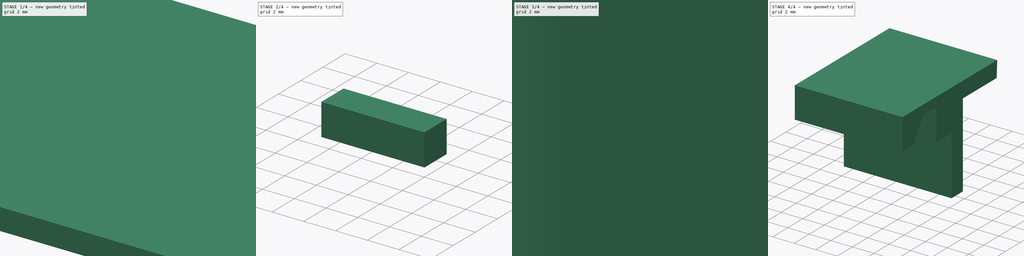
[diagram: build sequence overview — one tinted view per stage of 4, left to right]
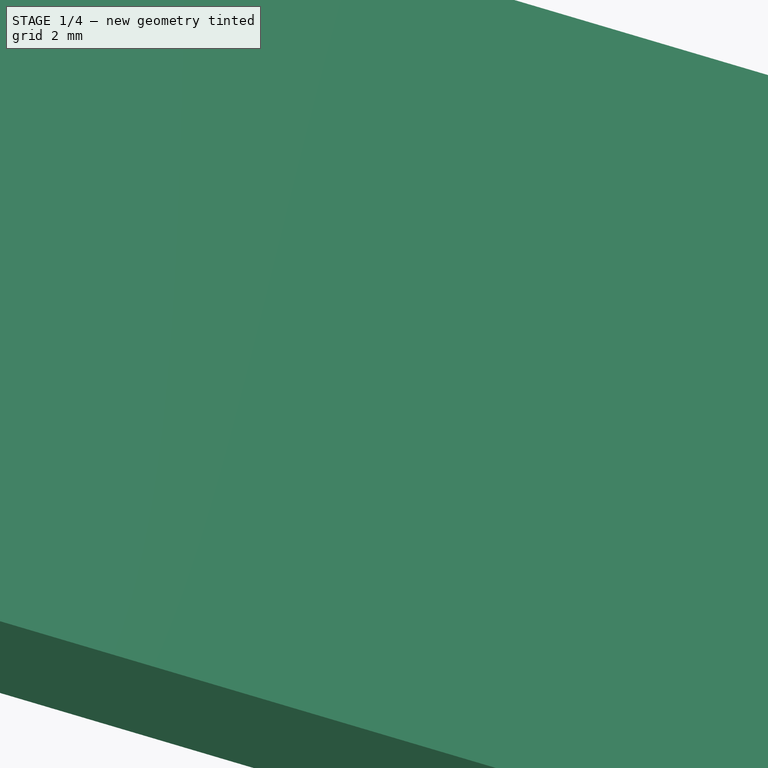
[diagram: stage 1 of 4 — iso view after this stage's code; geometry added in this stage tinted green]
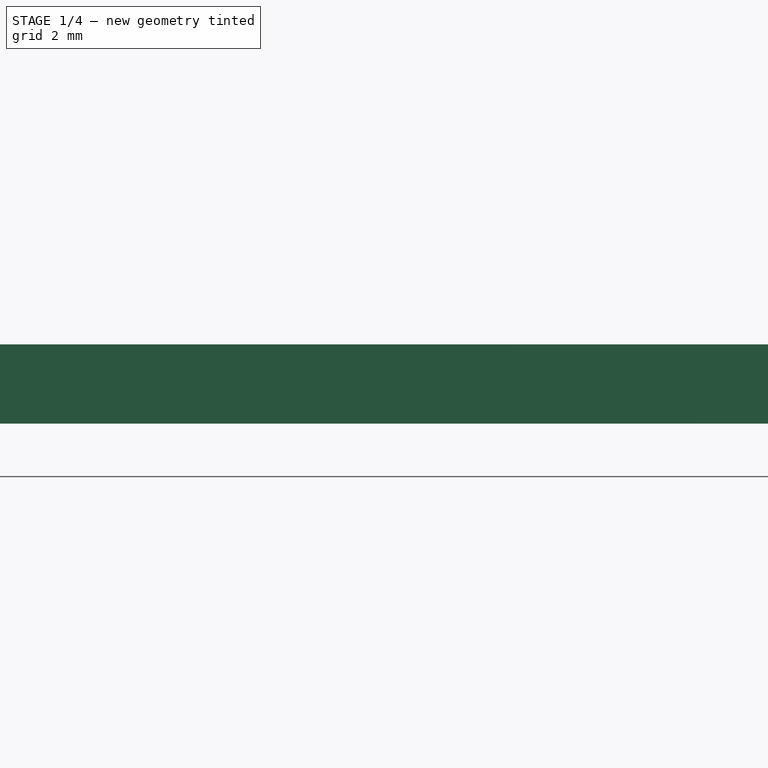
[diagram: stage 1 of 4 — front view after this stage's code; geometry added in this stage tinted green]
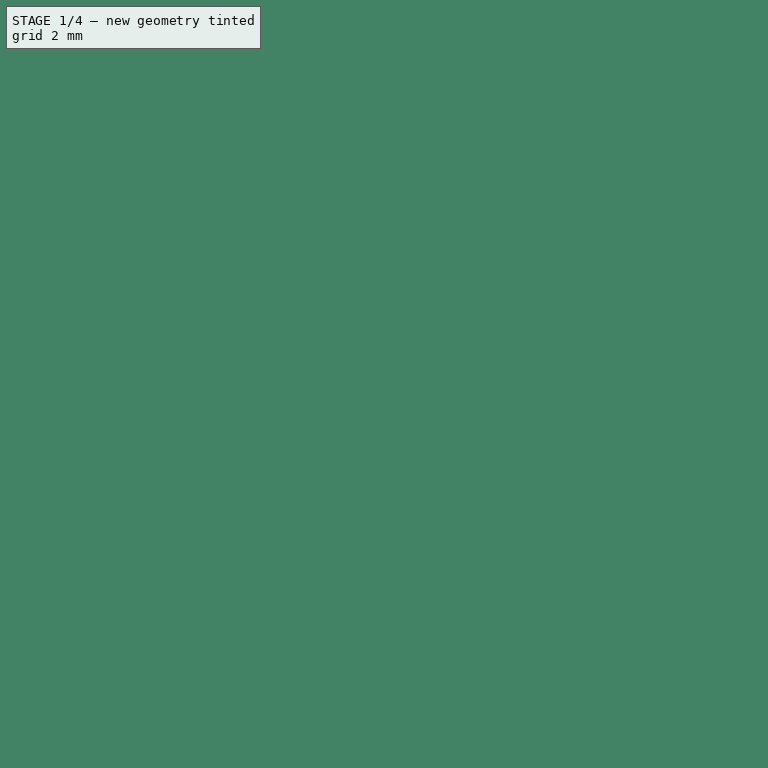
[diagram: stage 1 of 4 — top view after this stage's code; geometry added in this stage tinted green]
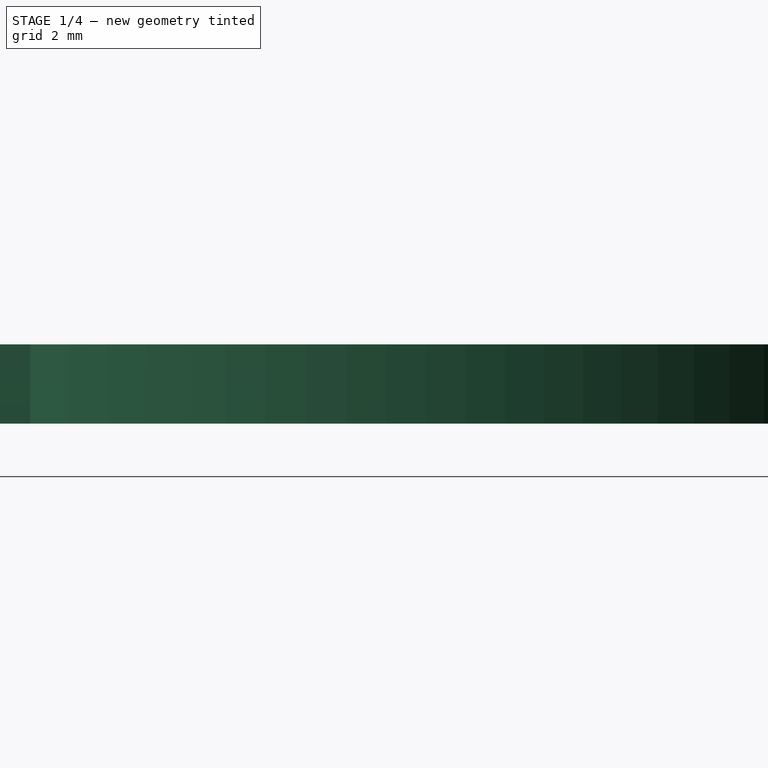
[diagram: stage 1 of 4 — right view after this stage's code; geometry added in this stage tinted green]
FCSTD DOCUMENT  (FreeCAD 0.20R24389 (Git))
Label: BatteryClip
License: All rights reserved
LicenseURL: http://en.wikipedia.org/wiki/All_rights_reserved
objects: Sketcher::SketchObject×4, Part::Extrusion×4, Part::Fuse×2, PartDesign::FeatureBase×2, Part::Chamfer×1, PartDesign::CoordinateSystem×1, PartDesign::Body×1
note: 15 computed .brp shape members not serialized (recipe doc carries the construction recipe); baked Part::Feature solids carry a one-line shape summary decoded from their .brp

FEATURE [Sketcher::SketchObject] Sketch
  FullyConstrained = true
  sketch-geometry (21):
    g0: GeomPoint X=26.75 Y=0 Z=0
    g1: GeomPoint X=53.5 Y=0 Z=0
    g2: Circle CenterX=11.75 CenterY=13.1 CenterZ=0 NormalX=0 NormalY=0 NormalZ=1 AngleXU=0 Radius=11.6
    g3: Circle CenterX=41.75 CenterY=13.1 CenterZ=0 NormalX=0 NormalY=0 NormalZ=1 AngleXU=0 Radius=11.6
    g4: LineSegment StartX=26.75 StartY=0 StartZ=0 EndX=26.75 EndY=49.0884 EndZ=0
    g5: ArcOfCircle CenterX=11.75 CenterY=13.1 CenterZ=0 NormalX=0 NormalY=0 NormalZ=1 AngleXU=0 Radius=15.3109 StartAngle=1.5708 EndAngle=3.51603
    g6: ArcOfCircle CenterX=41.75 CenterY=13.1 CenterZ=0 NormalX=0 NormalY=0 NormalZ=1 AngleXU=0 Radius=15.3109 StartAngle=5.90874 EndAngle=7.85398
    g7: LineSegment StartX=11.75 StartY=28.4109 StartZ=0 EndX=41.75 EndY=28.4109 EndZ=0
    g8: LineSegment StartX=0 StartY=0 StartZ=0 EndX=0 EndY=4.5 EndZ=0
    g9: LineSegment StartX=53.5 StartY=0 StartZ=0 EndX=53.5 EndY=4.5 EndZ=0
    g10: LineSegment StartX=0 StartY=4.5 StartZ=0 EndX=-2.5 EndY=4.5 EndZ=0
    g11: LineSegment StartX=53.5 StartY=4.5 StartZ=0 EndX=56 EndY=4.5 EndZ=0
    g12: LineSegment StartX=-2.5 StartY=4.5 StartZ=0 EndX=-2.5 EndY=7.5 EndZ=0
    g13: LineSegment StartX=56 StartY=4.5 StartZ=0 EndX=56 EndY=7.5 EndZ=0
    g14: LineSegment StartX=0 StartY=0 StartZ=0 EndX=2 EndY=0 EndZ=0
    g15: LineSegment StartX=2 StartY=0 StartZ=0 EndX=2 EndY=3.75 EndZ=0
    g16: ArcOfCircle CenterX=11.75 CenterY=13.1 CenterZ=0 NormalX=0 NormalY=0 NormalZ=1 AngleXU=0 Radius=13.5087 StartAngle=1.5708 EndAngle=3.90605
    g17: LineSegment StartX=53.5 StartY=0 StartZ=0 EndX=51.5 EndY=0 EndZ=0
    g18: LineSegment StartX=51.5 StartY=0 StartZ=0 EndX=51.5 EndY=3.75 EndZ=0
    g19: ArcOfCircle CenterX=41.75 CenterY=13.1 CenterZ=0 NormalX=0 NormalY=0 NormalZ=1 AngleXU=0 Radius=13.5087 StartAngle=5.51873 EndAngle=7.85398
    g20: LineSegment StartX=11.75 StartY=26.6087 StartZ=0 EndX=41.75 EndY=26.6087 EndZ=0
  constraints (58):
    c: PointOnObject(g0,g-1)
    c: Symmetric(g1,g-1,g0)
    c: DistanceX(g-1,g1) = 53.5
    c: Horizontal(g2,g3)
    c: Radius(g2) = 11.6
    c: Equal(g2,g3)
    c: Coincident(g4,g0)
    c: Symmetric(g2,g3,g4)
    c: DistanceX(g2,g3) = 30
    c: DistanceY(g-1,g2) = 13.1
    c: Coincident(g5,g2)
    c: Coincident(g6,g3)
    c: Vertical(g5,g5)
    c: Vertical(g6,g6)
    c: Block(g4)
    c: Coincident(g7,g5)
    c: Coincident(g7,g6)
    c: PointOnObject(g8,g-2)
    c: Coincident(g8,g-1)
    c: Coincident(g9,g1)
    c: Vertical(g9)
    c: DistanceY(g8,g8) = 4.5
    c: Equal(g9,g8)
    c: Coincident(g10,g8)
    c: Horizontal(g10)
    c: DistanceX(g10,g10) = 2.5
    c: Coincident(g11,g9)
    c: Horizontal(g11)
    c: DistanceX(g11,g11) = 2.5
    c: Vertical(g10,g5)
    c: Vertical(g11,g6)
    c: Horizontal(g5,g6)
    c: Coincident(g12,g10)
    c: Coincident(g12,g5)
    c: Coincident(g13,g11)
    c: Coincident(g13,g6)
    c: DistanceY(g12,g12) = 3
    c: Coincident(g8,g14)
    c: PointOnObject(g14,g-1)
    c: Coincident(g14,g15)
    c: Vertical(g15)
    c: Coincident(g16,g5)
    c: Coincident(g16,g15)
    c: Vertical(g5,g16)
    c: DistanceX(g8,g14) = 2
    c: Coincident(g9,g17)
    c: PointOnObject(g17,g-1)
    c: Coincident(g17,g18)
    c: Vertical(g18)
    c: Coincident(g19,g6)
    c: Coincident(g19,g18)
    c: Vertical(g6,g19)
    c: Horizontal(g16,g19)
    c: Coincident(g20,g16)
    c: Coincident(g20,g19)
    c: DistanceY(g19,g6) = 1.80216
    c: Horizontal(g15,g18)
    c: DistanceY(g18,g18) = 3.75
FEATURE [Part::Extrusion] Extrude
  Base = -> Sketch
  Dir = (0,0,1)
  DirMode = 2
  FaceMakerClass = Part::FaceMakerBullseye
  LengthFwd = 81
  LengthRev = 0
  Solid = true
  Symmetric = false
FEATURE [Sketcher::SketchObject] Sketch001
  ExternalGeometry = -> [Extrude]
  FullyConstrained = true
  MapMode = 5
  Placement = pos=(0,0,81) rot=(0,0,1;0rad)
  Support = -> [Extrude]
  sketch-geometry (10):
    g0: LineSegment StartX=-2.5 StartY=7.5 StartZ=0 EndX=-2.5 EndY=4.5 EndZ=0
    g1: LineSegment StartX=-2.5 StartY=4.5 StartZ=0 EndX=0 EndY=4.5 EndZ=0
    g2: LineSegment StartX=0 StartY=4.5 StartZ=0 EndX=0 EndY=0 EndZ=0
    g3: LineSegment StartX=0 StartY=0 StartZ=0 EndX=53.5 EndY=0 EndZ=0
    g4: LineSegment StartX=53.5 StartY=0 StartZ=0 EndX=53.5 EndY=4.5 EndZ=0
    g5: LineSegment StartX=53.5 StartY=4.5 StartZ=0 EndX=56 EndY=4.5 EndZ=0
    g6: LineSegment StartX=56 StartY=4.5 StartZ=0 EndX=56 EndY=7.5 EndZ=0
    g7: ArcOfCircle CenterX=41.75 CenterY=13.1 CenterZ=0 NormalX=0 NormalY=0 NormalZ=1 AngleXU=0 Radius=15.3109 StartAngle=5.90874 EndAngle=7.85398
    g8: ArcOfCircle CenterX=11.75 CenterY=13.1 CenterZ=0 NormalX=0 NormalY=0 NormalZ=1 AngleXU=0 Radius=15.3109 StartAngle=1.5708 EndAngle=3.51603
    g9: LineSegment StartX=11.75 StartY=28.4109 StartZ=0 EndX=41.75 EndY=28.4109 EndZ=0
  constraints (22):
    c: Coincident(g-6,g0)
    c: Coincident(g0,g-4)
    c: Coincident(g0,g1)
    c: Coincident(g1,g-3)
    c: Coincident(g1,g2)
    c: Coincident(g2,g-1)
    c: Coincident(g2,g3)
    c: Coincident(g3,g-11)
    c: Coincident(g3,g4)
    c: Coincident(g4,g-11)
    c: Coincident(g4,g5)
    c: Coincident(g5,g-10)
    c: Coincident(g5,g6)
    c: Coincident(g6,g-9)
    c: Coincident(g7,g-8)
    c: Coincident(g7,g6)
    c: Coincident(g7,g-8)
    c: Coincident(g8,g-6)
    c: Coincident(g8,g0)
    c: Coincident(g8,g-7)
    c: Coincident(g9,g8)
    c: Coincident(g9,g7)
FEATURE [Part::Extrusion] Extrude001
  Base = -> Sketch001
  Dir = (0,0,1)
  DirMode = 2
  FaceMakerClass = Part::FaceMakerBullseye
  LengthFwd = 0
  LengthRev = 1.5
  Solid = true
  Symmetric = false
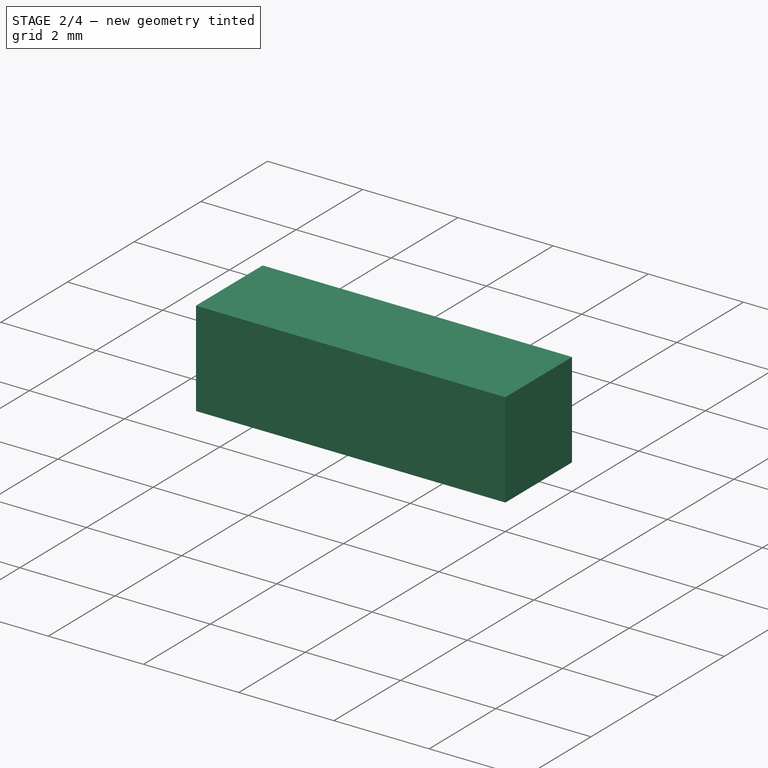
[diagram: stage 2 of 4 — iso view after this stage's code; geometry added in this stage tinted green]
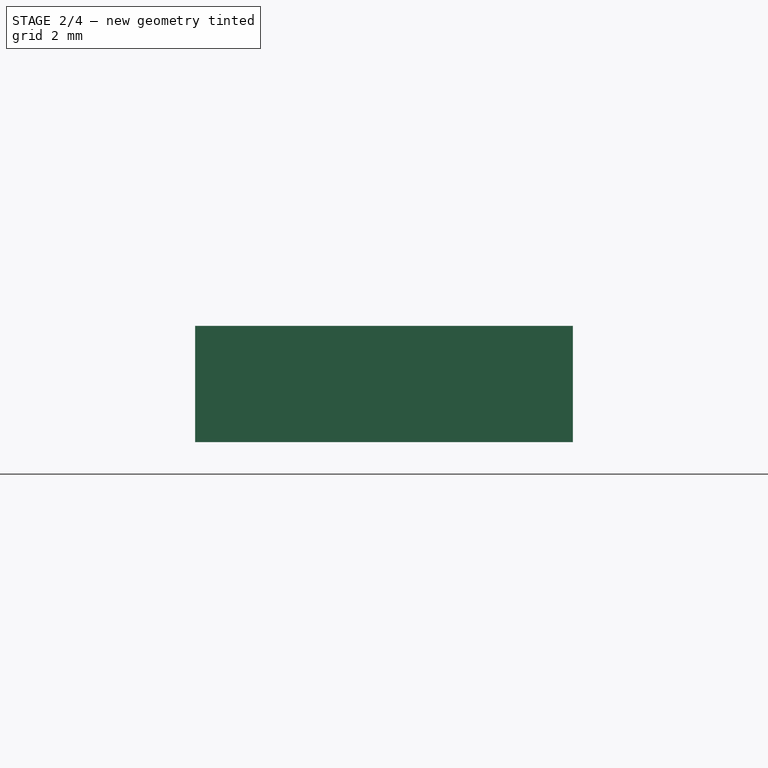
[diagram: stage 2 of 4 — front view after this stage's code; geometry added in this stage tinted green]
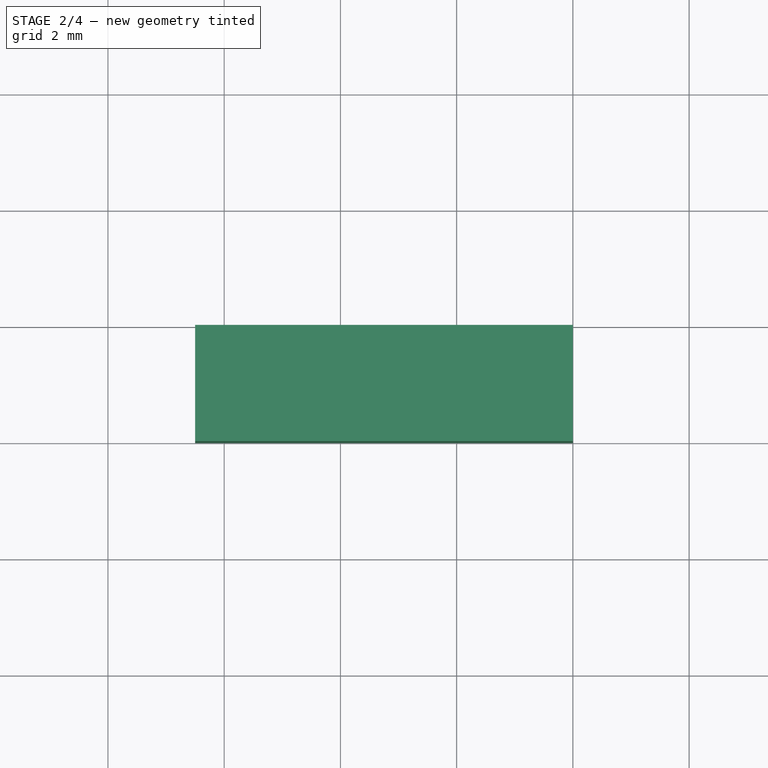
[diagram: stage 2 of 4 — top view after this stage's code; geometry added in this stage tinted green]
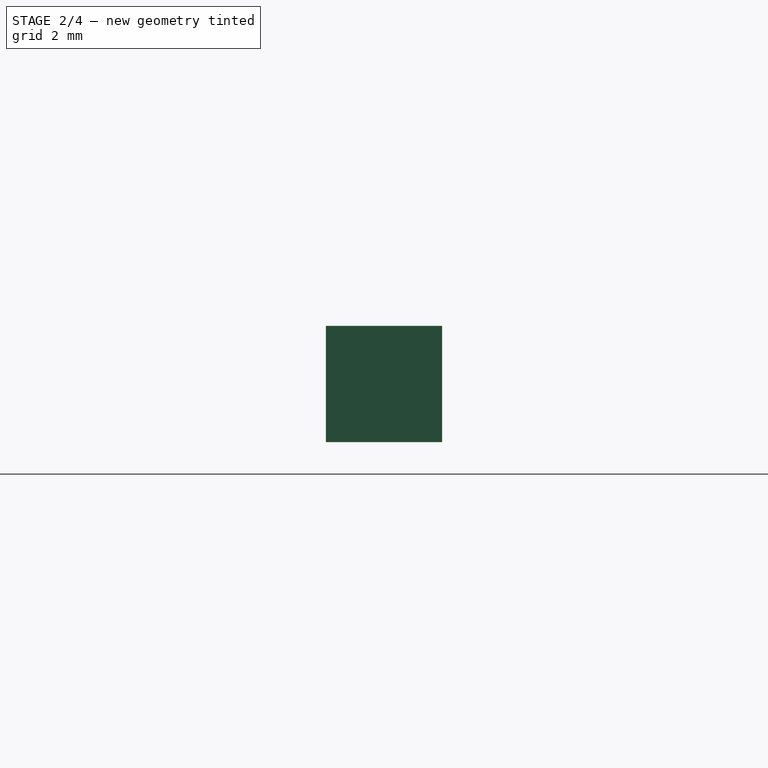
[diagram: stage 2 of 4 — right view after this stage's code; geometry added in this stage tinted green]
FEATURE [Part::Fuse] Fusion
  Base = -> Extrude
  Tool = -> Extrude001
FEATURE [Sketcher::SketchObject] Sketch002
  ExternalGeometry = -> [Fusion]
  FullyConstrained = true
  MapMode = 5
  Placement = pos=(0,0,81) rot=(0,0,1;0rad)
  Support = -> [Fusion]
  sketch-geometry (15):
    g0: GeomPoint X=26.75 Y=4.5 Z=0
    g1: GeomPoint X=26.75 Y=0 Z=0
    g2: LineSegment StartX=23.5 StartY=0 StartZ=0 EndX=30 EndY=0 EndZ=0
    g3: LineSegment StartX=30 StartY=0 StartZ=0 EndX=30 EndY=2 EndZ=0
    g4: LineSegment StartX=30 StartY=2 StartZ=0 EndX=23.5 EndY=2 EndZ=0
    g5: LineSegment StartX=23.5 StartY=2 StartZ=0 EndX=23.5 EndY=0 EndZ=0
    g6: LineSegment StartX=8.5 StartY=0 StartZ=0 EndX=15 EndY=0 EndZ=0
    g7: LineSegment StartX=15 StartY=0 StartZ=0 EndX=15 EndY=2 EndZ=0
    g8: LineSegment StartX=15 StartY=2 StartZ=0 EndX=8.5 EndY=2 EndZ=0
    g9: LineSegment StartX=8.5 StartY=2 StartZ=0 EndX=8.5 EndY=0 EndZ=0
    g10: LineSegment StartX=38.5 StartY=0 StartZ=0 EndX=45 EndY=0 EndZ=0
    g11: LineSegment StartX=45 StartY=0 StartZ=0 EndX=45 EndY=2 EndZ=0
    g12: LineSegment StartX=45 StartY=2 StartZ=0 EndX=38.5 EndY=2 EndZ=0
    g13: LineSegment StartX=38.5 StartY=2 StartZ=0 EndX=38.5 EndY=0 EndZ=0
    g14: GeomPoint X=11.75 Y=0 Z=0
  constraints (38):
    c: Symmetric(g-4,g-5,g0)
    c: PointOnObject(g1,g-1)
    c: Vertical(g1,g0)
    c: Coincident(g2,g3)
    c: Coincident(g3,g4)
    c: Coincident(g4,g5)
    c: Coincident(g5,g2)
    c: Horizontal(g2)
    c: Horizontal(g4)
    c: Vertical(g3)
    c: Vertical(g5)
    c: Coincident(g6,g7)
    c: Coincident(g7,g8)
    c: Coincident(g8,g9)
    c: Coincident(g9,g6)
    c: Horizontal(g6)
    c: Horizontal(g8)
    c: Vertical(g7)
    c: Vertical(g9)
    c: PointOnObject(g6,g-1)
    c: Coincident(g10,g11)
    c: Coincident(g11,g12)
    c: Coincident(g12,g13)
    c: Coincident(g13,g10)
    c: Horizontal(g10)
    c: Horizontal(g12)
    c: Vertical(g11)
    c: Vertical(g13)
    c: Equal(g8,g4)
    c: Equal(g12,g4)
    c: Equal(g7,g5)
    c: Equal(g3,g13)
    c: DistanceY(g7,g7) = 2
    c: DistanceX(g8,g8) = 6.5
    c: Symmetric(g6,g10,g1)
    c: Symmetric(g2,g2,g1)
    c: Symmetric(g6,g6,g14)
    c: DistanceX(g14,g1) = 15
FEATURE [Part::Extrusion] Extrude002
  Base = -> Sketch002
  Dir = (0,0,1)
  DirMode = 2
  FaceMakerClass = Part::FaceMakerBullseye
  LengthFwd = 2
  LengthRev = 0
  Solid = true
  Symmetric = false
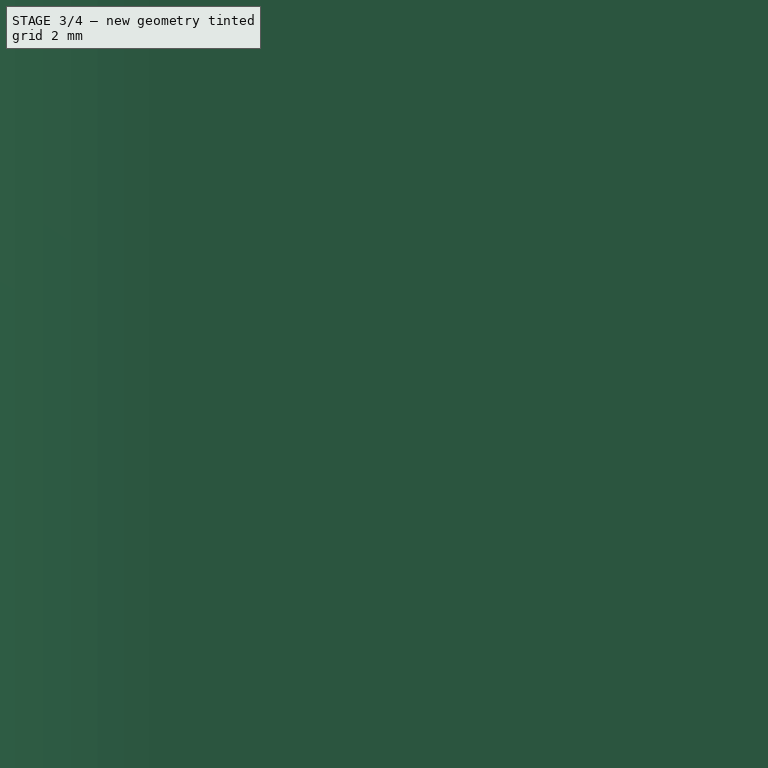
[diagram: stage 3 of 4 — iso view after this stage's code; geometry added in this stage tinted green]
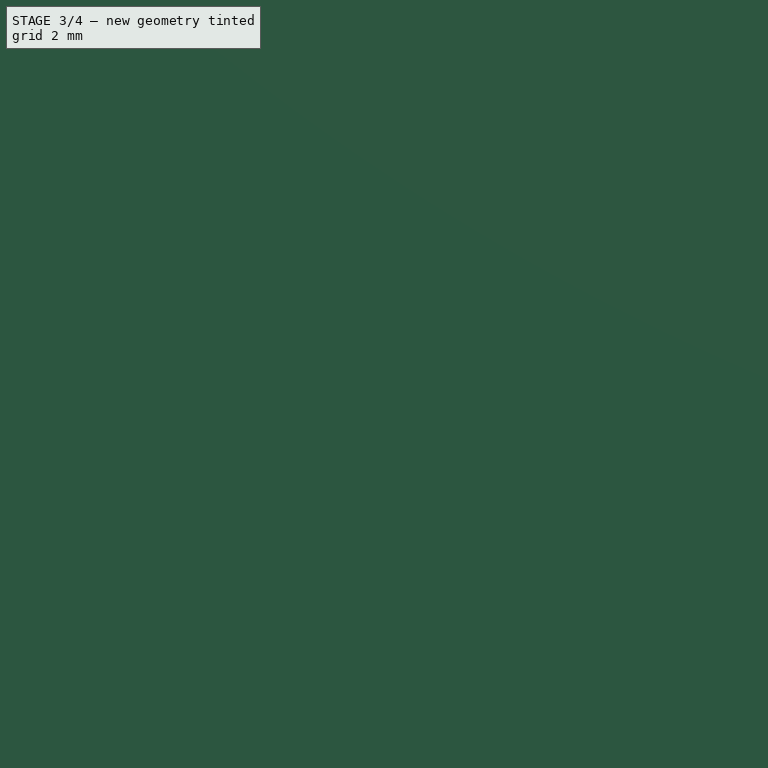
[diagram: stage 3 of 4 — front view after this stage's code; geometry added in this stage tinted green]
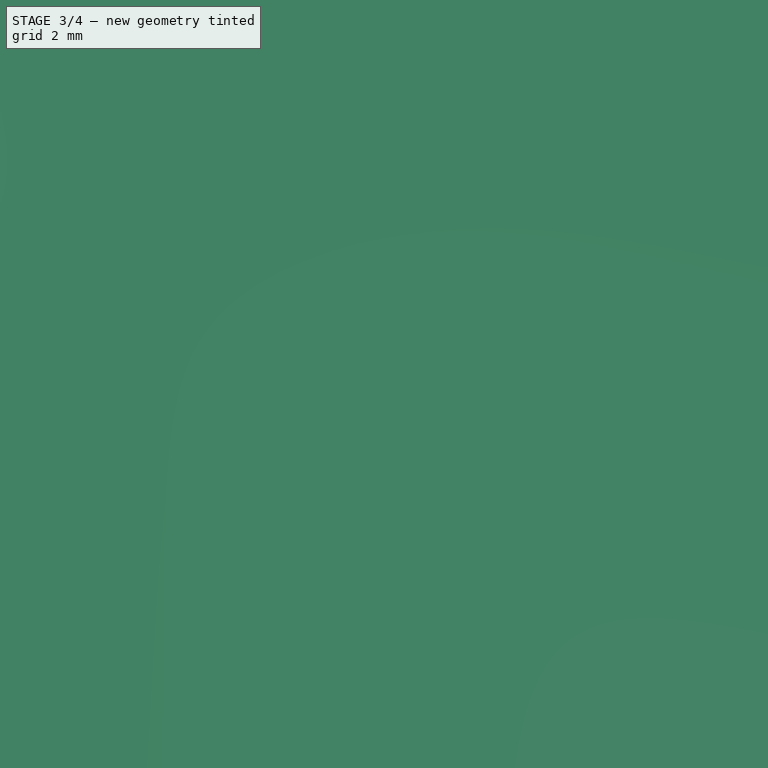
[diagram: stage 3 of 4 — top view after this stage's code; geometry added in this stage tinted green]
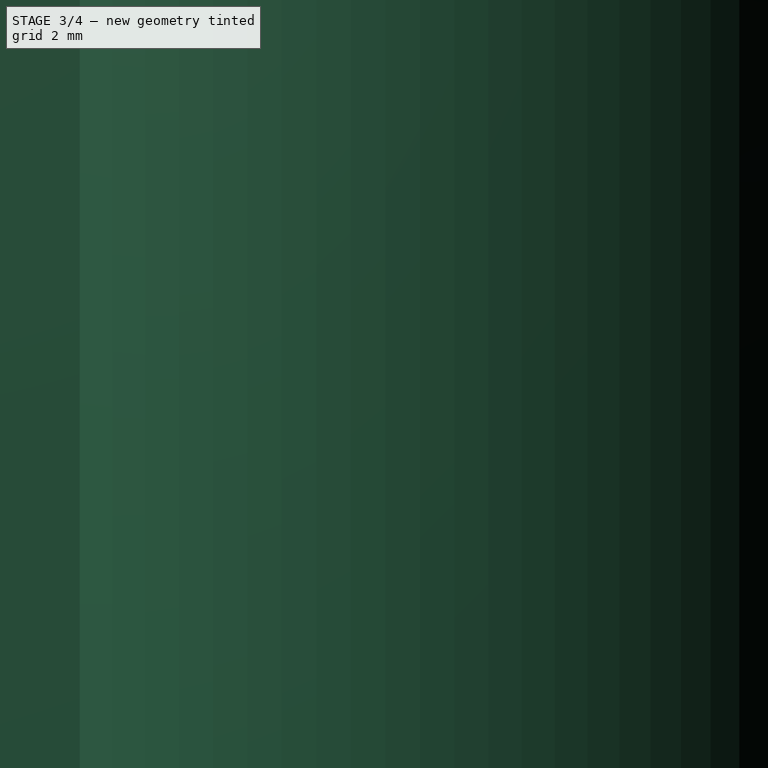
[diagram: stage 3 of 4 — right view after this stage's code; geometry added in this stage tinted green]
FEATURE [Part::Chamfer] Chamfer
  Base = -> Extrude002
  Edges = 3 edges r=1.4: [Edge4,Edge16,Edge28]
FEATURE [Part::Fuse] Fusion001
  Base = -> Fusion
  Tool = -> Chamfer
FEATURE [PartDesign::FeatureBase] BaseFeature
  BaseFeature = -> Fusion001
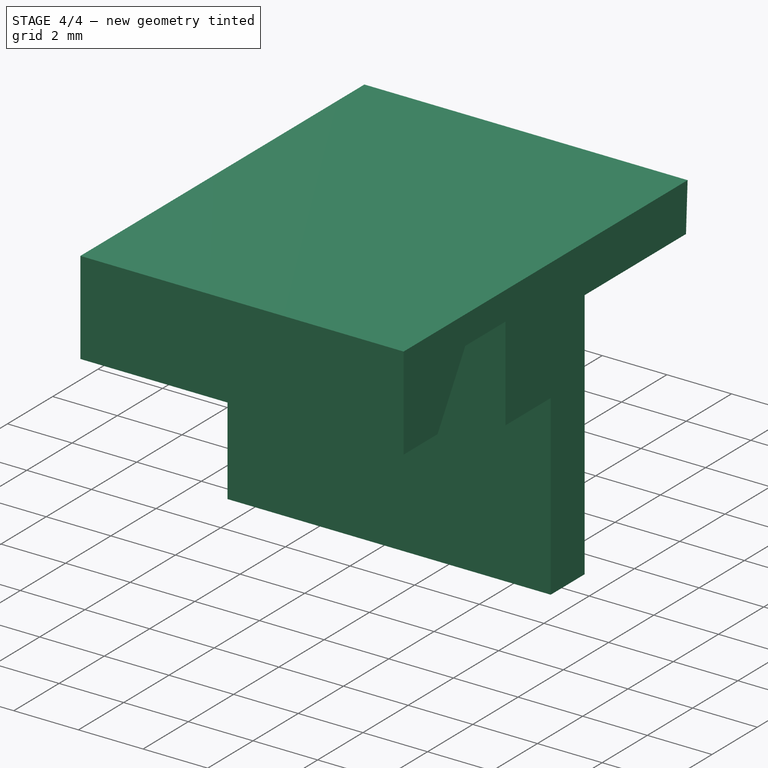
[diagram: stage 4 of 4 — iso view after this stage's code; geometry added in this stage tinted green]
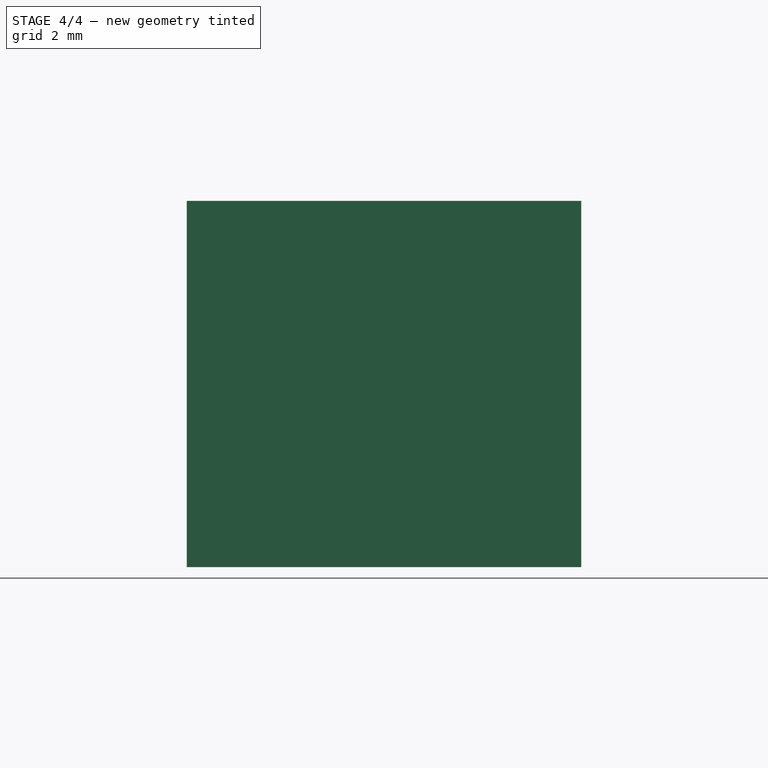
[diagram: stage 4 of 4 — front view after this stage's code; geometry added in this stage tinted green]
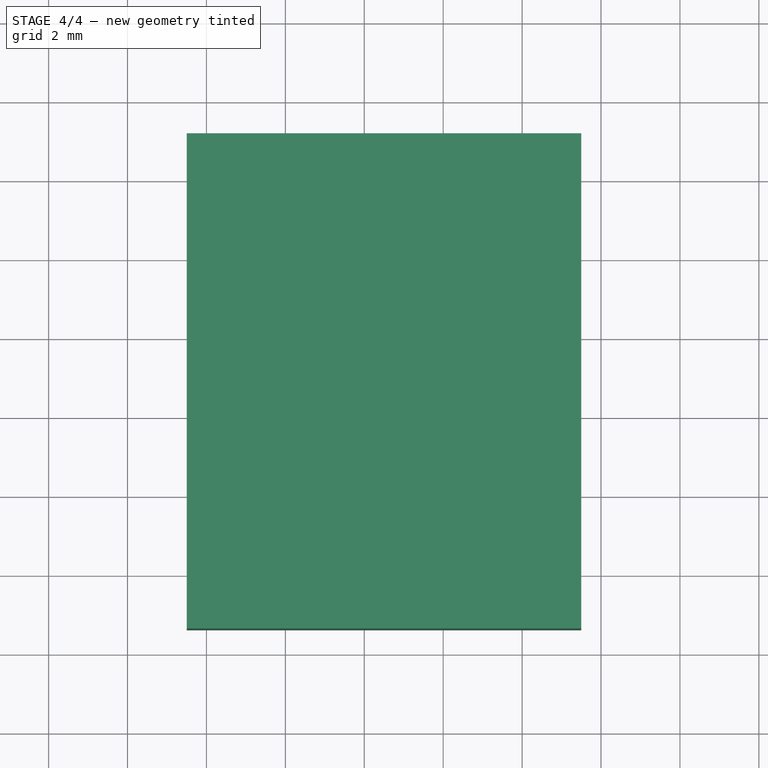
[diagram: stage 4 of 4 — top view after this stage's code; geometry added in this stage tinted green]
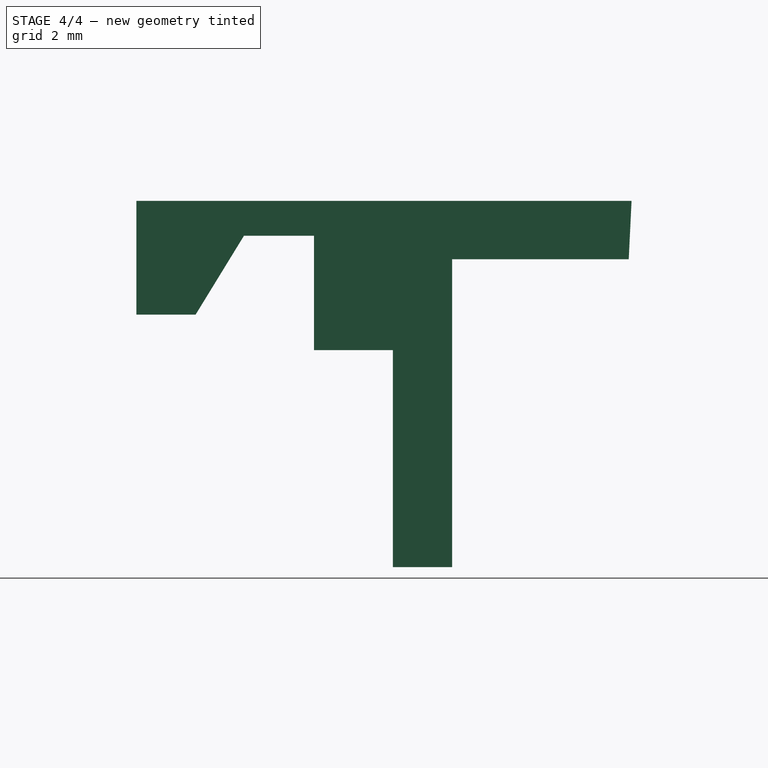
[diagram: stage 4 of 4 — right view after this stage's code; geometry added in this stage tinted green]
FEATURE [Sketcher::SketchObject] Sketch003
  FullyConstrained = false
  MapMode = 5
  Placement = pos=(-2.5,0,0) rot=(0.57735,-0.57735,-0.57735;2.0944rad)
  Support = -> [BaseFeature]
  sketch-geometry (12):
    g0: LineSegment StartX=-4.01432 StartY=-11.8947 StartZ=0 EndX=-2.51432 EndY=-11.8947 EndZ=0
    g1: LineSegment StartX=-15.0627 StartY=-9.01214 StartZ=0 EndX=-14.9908 EndY=-10.4903 EndZ=0
    g2: LineSegment StartX=-14.9908 StartY=-10.4903 StartZ=0 EndX=-10.5143 EndY=-10.4903 EndZ=0
    g3: LineSegment StartX=-10.5143 StartY=-10.4903 StartZ=0 EndX=-10.5143 EndY=-18.2947 EndZ=0
    g4: LineSegment StartX=-5.24035 StartY=-9.89466 StartZ=0 EndX=-4.01432 EndY=-11.8947 EndZ=0
    g5: LineSegment StartX=-5.24035 StartY=-9.89466 StartZ=0 EndX=-7.01432 EndY=-9.89466 EndZ=0
    g6: LineSegment StartX=-7.01432 StartY=-9.89466 StartZ=0 EndX=-7.01432 EndY=-12.7947 EndZ=0
    g7: LineSegment StartX=-7.01432 StartY=-12.7947 StartZ=0 EndX=-9.01432 EndY=-12.7947 EndZ=0
    g8: LineSegment StartX=-9.01432 StartY=-12.7947 StartZ=0 EndX=-9.01432 EndY=-18.2947 EndZ=0
    g9: LineSegment StartX=-10.5143 StartY=-18.2947 StartZ=0 EndX=-9.01432 EndY=-18.2947 EndZ=0
    g10: LineSegment StartX=-2.51432 StartY=-11.8947 StartZ=0 EndX=-2.51432 EndY=-9.01214 EndZ=0
    g11: LineSegment StartX=-2.51432 StartY=-9.01214 StartZ=0 EndX=-15.0627 EndY=-9.01214 EndZ=0
  constraints (29):
    c: Horizontal(g0)
    c: Coincident(g1,g2)
    c: Horizontal(g2)
    c: Coincident(g2,g3)
    c: Vertical(g3)
    c: Coincident(g4,g0)
    c: Coincident(g4,g5)
    c: Horizontal(g5)
    c: Coincident(g5,g6)
    c: Vertical(g6)
    c: Coincident(g6,g7)
    c: Coincident(g7,g8)
    c: Vertical(g8)
    c: Coincident(g9,g3)
    c: Coincident(g9,g8)
    c: Horizontal(g9)
    c: DistanceX(g6,g0) = 4.5
    c: DistanceY(g0,g4) = 2
    c: DistanceX(g0,g0) = 1.5
    c: Horizontal(g7)
    c: DistanceY(g8,g8) = 5.5
    c: DistanceY(g6,g6) = 2.9
    c: DistanceX(g7,g0) = 6.5
    c: Coincident(g0,g10)
    c: Vertical(g10)
    c: Coincident(g10,g11)
    c: Coincident(g11,g1)
    c: Horizontal(g11)
    c: DistanceX(g9,g9) = 1.5
FEATURE [Part::Extrusion] Extrude003
  Base = -> Sketch003
  Dir = (-1,0,0)
  DirMode = 2
  FaceMakerClass = Part::FaceMakerBullseye
  LengthFwd = 10
  LengthRev = 0
  Solid = true
  Symmetric = false
FEATURE [PartDesign::FeatureBase] BaseFeature001
  BaseFeature = -> Extrude003
FEATURE [PartDesign::CoordinateSystem] LCS_Body_1
  AttacherType = Attacher::AttachEngine3D
FEATURE [PartDesign::Body] Body
  BaseFeature = -> Extrude003
  Group = -> [BaseFeature001,LCS_Body_1]
  Origin = -> Origin
  Tip = -> BaseFeature001
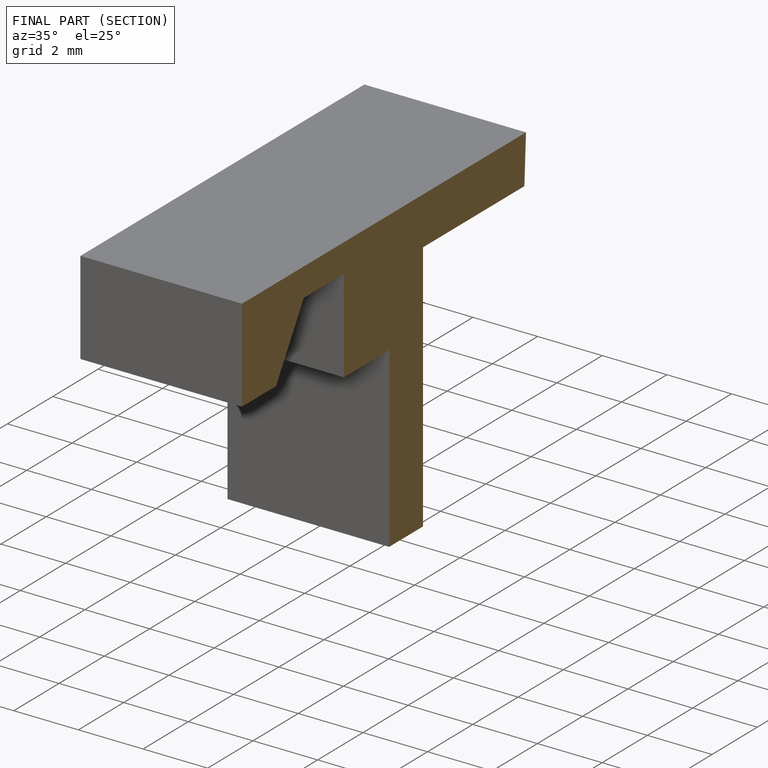
[diagram: finished part — half-section view (interior)]
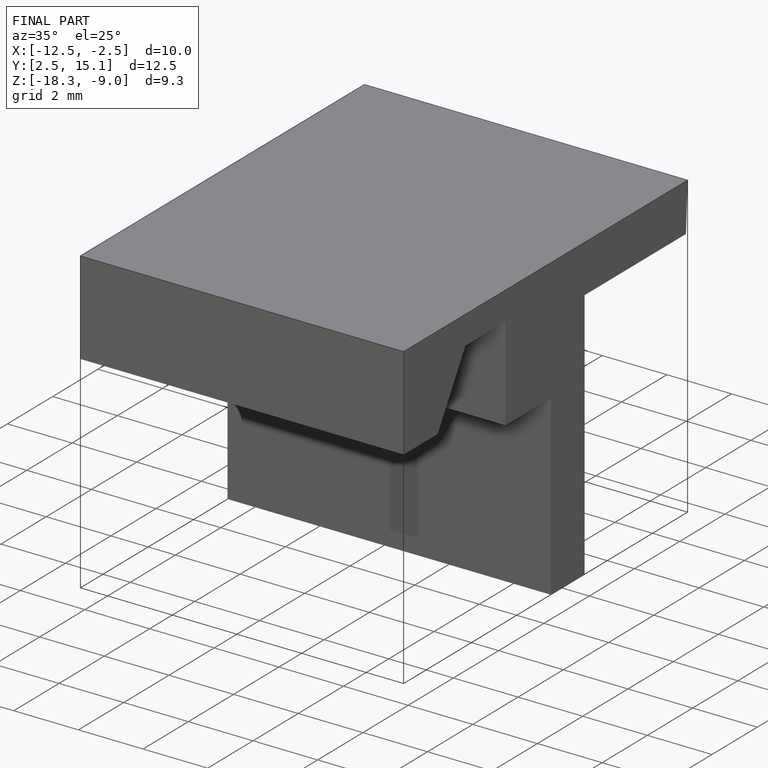
[diagram: finished part — iso view with bounding-box wireframe]
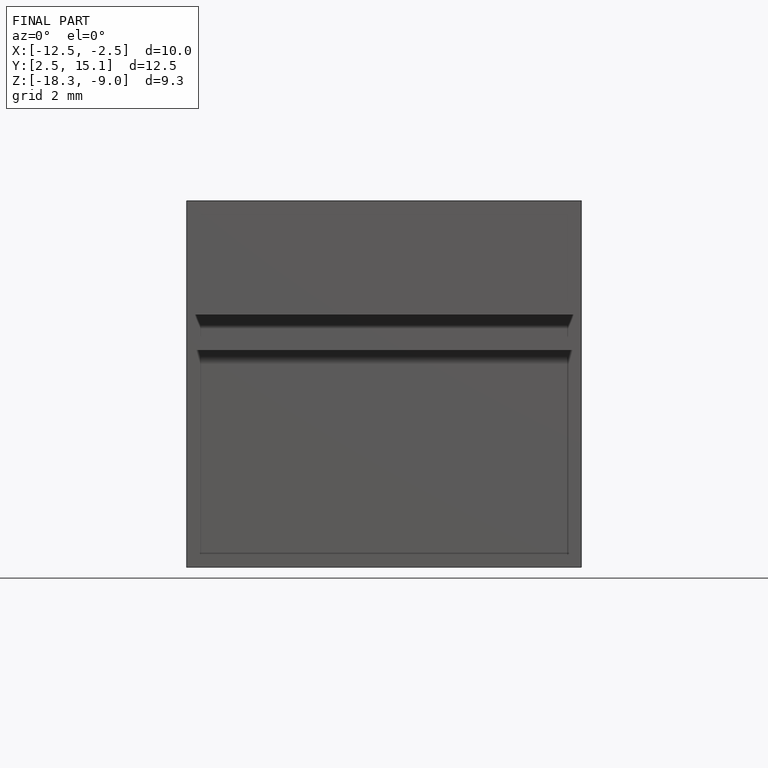
[diagram: finished part — front view with bounding-box wireframe]
